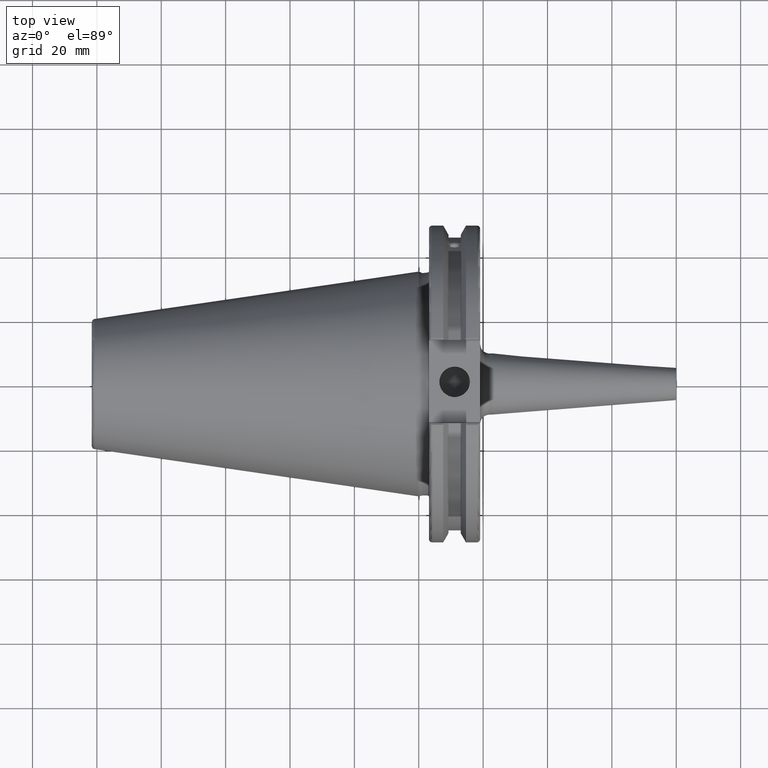
[diagram: clean part render]
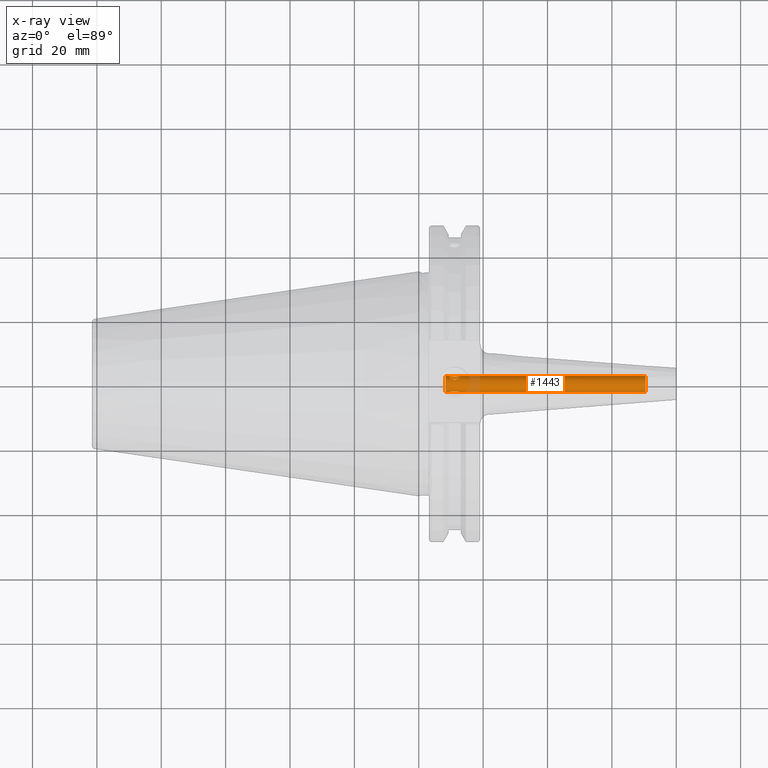
[diagram: x-ray — body ghosted, one internal face saturated and labeled with its STEP entity id]
A machine part, top view, then the same camera in x-ray: the body is ghosted and one INTERNAL B-rep face — a face not visible from any outside direction — is saturated and labeled: STEP entity #1443.
In plain terms, the highlighted cylindrical surface (bore or boss wall) has radius 2.5 mm, axis along (-1, 0, 0).
Its self-contained STEP definition (entity closure, byte-faithful):
#36=B_SPLINE_CURVE_WITH_KNOTS('',3,(#2188,#2189,#2190,#2191,#2192,#2193,
#2194,#2195,#2196,#2197,#2198,#2199,#2200,#2201,#2202,#2203,#2204,#2205,
#2206,#2207,#2208,#2209,#2210,#2211,#2212,#2213),.UNSPECIFIED.,.F.,.F.,
(4,2,2,2,2,2,2,2,2,2,2,2,4),(0.,0.0637230191753749,0.12744603835075,0.190562101038102,
0.253678163725455,0.316794226412808,0.379910289100161,0.443633308275535,
0.50735632745091,0.571079346626285,0.63480236580166,0.697918428489013,0.761034491176366),
 .UNSPECIFIED.);
#37=B_SPLINE_CURVE_WITH_KNOTS('',3,(#2214,#2215,#2216,#2217,#2218,#2219,
#2220,#2221,#2222,#2223),.UNSPECIFIED.,.F.,.F.,(4,2,2,2,4),(0.761034491176366,
0.824150553863718,0.887266616551071,0.950989635726446,1.01471265490182),
 .UNSPECIFIED.);
#38=B_SPLINE_CURVE_WITH_KNOTS('',3,(#2226,#2227,#2228,#2229,#2230,#2231,
#2232,#2233,#2234,#2235,#2236,#2237,#2238,#2239,#2240,#2241,#2242,#2243,
#2244,#2245,#2246,#2247,#2248,#2249,#2250,#2251),.UNSPECIFIED.,.F.,.F.,
(4,2,2,2,2,2,2,2,2,2,2,2,4),(0.,0.0637230191753749,0.12744603835075,0.190562101038102,
0.253678163725455,0.316794226412808,0.379910289100161,0.443633308275535,
0.50735632745091,0.571079346626285,0.63480236580166,0.697918428489013,0.761034491176365),
 .UNSPECIFIED.);
#39=B_SPLINE_CURVE_WITH_KNOTS('',3,(#2252,#2253,#2254,#2255,#2256,#2257,
#2258,#2259,#2260,#2261),.UNSPECIFIED.,.F.,.F.,(4,2,2,2,4),(0.761034491176365,
0.824150553863718,0.887266616551071,0.950989635726446,1.01471265490182),
 .UNSPECIFIED.);
#102=LINE('',#2185,#194);
#194=VECTOR('',#1775,2.5);
#274=CYLINDRICAL_SURFACE('',#1568,2.5);
#300=FACE_BOUND('',#447,.T.);
#301=FACE_BOUND('',#448,.T.);
#360=FACE_OUTER_BOUND('',#446,.T.);
#446=EDGE_LOOP('',(#1032,#1033,#1034,#1035));
#447=EDGE_LOOP('',(#1036,#1037));
#448=EDGE_LOOP('',(#1038,#1039));
#554=CIRCLE('',#1567,2.5);
#555=CIRCLE('',#1569,2.5);
#635=VERTEX_POINT('',#2179);
#636=VERTEX_POINT('',#2183);
#637=VERTEX_POINT('',#2186);
#638=VERTEX_POINT('',#2187);
#639=VERTEX_POINT('',#2224);
#640=VERTEX_POINT('',#2225);
#789=EDGE_CURVE('',#635,#635,#554,.T.);
#791=EDGE_CURVE('',#636,#636,#555,.T.);
#792=EDGE_CURVE('',#636,#635,#102,.T.);
#793=EDGE_CURVE('',#637,#638,#36,.T.);
#794=EDGE_CURVE('',#638,#637,#37,.T.);
#795=EDGE_CURVE('',#639,#640,#38,.T.);
#796=EDGE_CURVE('',#640,#639,#39,.T.);
#1032=ORIENTED_EDGE('',*,*,#791,.F.);
#1033=ORIENTED_EDGE('',*,*,#792,.T.);
#1034=ORIENTED_EDGE('',*,*,#789,.F.);
#1035=ORIENTED_EDGE('',*,*,#792,.F.);
#1036=ORIENTED_EDGE('',*,*,#793,.F.);
#1037=ORIENTED_EDGE('',*,*,#794,.F.);
#1038=ORIENTED_EDGE('',*,*,#795,.F.);
#1039=ORIENTED_EDGE('',*,*,#796,.F.);
#1443=ADVANCED_FACE('',(#360,#300,#301),#274,.F.);
#1567=AXIS2_PLACEMENT_3D('',#2180,#1768,#1769);
#1568=AXIS2_PLACEMENT_3D('',#2182,#1771,#1772);
#1569=AXIS2_PLACEMENT_3D('',#2184,#1773,#1774);
#1768=DIRECTION('center_axis',(-1.,0.,0.));
#1769=DIRECTION('ref_axis',(0.,0.,1.));
#1771=DIRECTION('center_axis',(-1.,0.,0.));
#1772=DIRECTION('ref_axis',(0.,0.,1.));
#1773=DIRECTION('center_axis',(1.,0.,0.));
#1774=DIRECTION('ref_axis',(0.,0.,1.));
#1775=DIRECTION('',(1.,0.,0.));
#2179=CARTESIAN_POINT('',(70.47,-3.06161699786839E-16,-2.50000000000001));
#2180=CARTESIAN_POINT('Origin',(70.47,0.,0.));
#2182=CARTESIAN_POINT('Origin',(-15.565,0.,0.));
#2183=CARTESIAN_POINT('',(8.35710010697738,3.06161699786838E-16,-2.5));
#2184=CARTESIAN_POINT('Origin',(8.35710010697738,0.,0.));
#2185=CARTESIAN_POINT('',(-15.565,-3.06161699786838E-16,-2.5));
#2186=CARTESIAN_POINT('',(11.1341,-2.34288424711468,0.87229204090253));
#2187=CARTESIAN_POINT('',(9.5131,-2.34923155196477,-0.855050358314171));
#2188=CARTESIAN_POINT('Ctrl Pts',(11.1341,-2.34288424711468,0.87229204090253));
#2189=CARTESIAN_POINT('Ctrl Pts',(11.3465100639179,-2.34288424711468,0.872292040902529));
#2190=CARTESIAN_POINT('Ctrl Pts',(11.5655947192169,-2.36477157326901,0.817726726080305));
#2191=CARTESIAN_POINT('Ctrl Pts',(11.9615007810139,-2.42452973471013,0.618446307168028));
#2192=CARTESIAN_POINT('Ctrl Pts',(12.1392192294107,-2.45964811024951,0.47469964766216));
#2193=CARTESIAN_POINT('Ctrl Pts',(12.4200769811454,-2.49974760742056,0.161222047659227));
#2194=CARTESIAN_POINT('Ctrl Pts',(12.5440461412593,-2.50824047763237,-0.0313298308171008));
#2195=CARTESIAN_POINT('Ctrl Pts',(12.7117096141242,-2.46943793626117,-0.44059983328368));
#2196=CARTESIAN_POINT('Ctrl Pts',(12.7551,-2.4211881013197,-0.657351363779618));
#2197=CARTESIAN_POINT('Ctrl Pts',(12.7551,-2.27727500260984,-1.05274935284873));
#2198=CARTESIAN_POINT('Ctrl Pts',(12.7117096141242,-2.17491132236477,-1.24980505439247));
#2199=CARTESIAN_POINT('Ctrl Pts',(12.5440461412593,-1.94156210695918,-1.58826585833504));
#2200=CARTESIAN_POINT('Ctrl Pts',(12.4200769811454,-1.81128622922084,-1.73031004311112));
#2201=CARTESIAN_POINT('Ctrl Pts',(12.1392192294107,-1.57906871504493,-1.94467235669943));
#2202=CARTESIAN_POINT('Ctrl Pts',(11.9615007810139,-1.45976790694742,-2.03221502976178));
#2203=CARTESIAN_POINT('Ctrl Pts',(11.5655947192169,-1.28589551531449,-2.14646088153996));
#2204=CARTESIAN_POINT('Ctrl Pts',(11.3465100639179,-1.23405494245285,-2.17419143568538));
#2205=CARTESIAN_POINT('Ctrl Pts',(10.9216899360821,-1.23405494245285,-2.17419143568538));
#2206=CARTESIAN_POINT('Ctrl Pts',(10.7026052807831,-1.28589551531449,-2.14646088153996));
#2207=CARTESIAN_POINT('Ctrl Pts',(10.3066992189861,-1.45976790694742,-2.03221502976179));
#2208=CARTESIAN_POINT('Ctrl Pts',(10.1289807705893,-1.57906871504493,-1.94467235669943));
#2209=CARTESIAN_POINT('Ctrl Pts',(9.84812301885457,-1.81128622922084,-1.73031004311112));
#2210=CARTESIAN_POINT('Ctrl Pts',(9.72415385874069,-1.94156210695918,-1.58826585833504));
#2211=CARTESIAN_POINT('Ctrl Pts',(9.55649038587582,-2.17491132236477,-1.24980505439247));
#2212=CARTESIAN_POINT('Ctrl Pts',(9.5131,-2.27727500260984,-1.05274935284873));
#2213=CARTESIAN_POINT('Ctrl Pts',(9.5131,-2.34923155196477,-0.855050358314171));
#2214=CARTESIAN_POINT('Ctrl Pts',(9.5131,-2.34923155196477,-0.855050358314171));
#2215=CARTESIAN_POINT('Ctrl Pts',(9.5131,-2.42118810131971,-0.657351363779617));
#2216=CARTESIAN_POINT('Ctrl Pts',(9.55649038587582,-2.46943793626118,-0.440599833283677));
#2217=CARTESIAN_POINT('Ctrl Pts',(9.72415385874069,-2.50824047763237,-0.0313298308170969));
#2218=CARTESIAN_POINT('Ctrl Pts',(9.84812301885457,-2.49974760742056,0.161222047659228));
#2219=CARTESIAN_POINT('Ctrl Pts',(10.1289807705893,-2.45964811024951,0.474699647662161));
#2220=CARTESIAN_POINT('Ctrl Pts',(10.3066992189861,-2.42452973471013,0.618446307168032));
#2221=CARTESIAN_POINT('Ctrl Pts',(10.7026052807831,-2.36477157326901,0.817726726080307));
#2222=CARTESIAN_POINT('Ctrl Pts',(10.9216899360821,-2.34288424711468,0.87229204090253));
#2223=CARTESIAN_POINT('Ctrl Pts',(11.1341,-2.34288424711468,0.87229204090253));
#2224=CARTESIAN_POINT('',(11.1341,2.34288424711468,-0.872292040902529));
#2225=CARTESIAN_POINT('',(9.5131,2.34923155196477,0.855050358314172));
#2226=CARTESIAN_POINT('Ctrl Pts',(11.1341,2.34288424711468,-0.872292040902529));
#2227=CARTESIAN_POINT('Ctrl Pts',(11.3465100639179,2.34288424711468,-0.872292040902529));
#2228=CARTESIAN_POINT('Ctrl Pts',(11.5655947192169,2.36477157326901,-0.817726726080304));
#2229=CARTESIAN_POINT('Ctrl Pts',(11.9615007810139,2.42452973471013,-0.618446307168026));
#2230=CARTESIAN_POINT('Ctrl Pts',(12.1392192294107,2.45964811024951,-0.474699647662159));
#2231=CARTESIAN_POINT('Ctrl Pts',(12.4200769811454,2.49974760742056,-0.161222047659226));
#2232=CARTESIAN_POINT('Ctrl Pts',(12.5440461412593,2.50824047763237,0.0313298308171025));
#2233=CARTESIAN_POINT('Ctrl Pts',(12.7117096141242,2.46943793626117,0.440599833283681));
#2234=CARTESIAN_POINT('Ctrl Pts',(12.7551,2.42118810131971,0.657351363779618));
#2235=CARTESIAN_POINT('Ctrl Pts',(12.7551,2.27727500260984,1.05274935284873));
#2236=CARTESIAN_POINT('Ctrl Pts',(12.7117096141242,2.17491132236477,1.24980505439247));
#2237=CARTESIAN_POINT('Ctrl Pts',(12.5440461412593,1.94156210695918,1.58826585833504));
#2238=CARTESIAN_POINT('Ctrl Pts',(12.4200769811454,1.81128622922084,1.73031004311112));
#2239=CARTESIAN_POINT('Ctrl Pts',(12.1392192294107,1.57906871504493,1.94467235669943));
#2240=CARTESIAN_POINT('Ctrl Pts',(11.9615007810139,1.45976790694742,2.03221502976178));
#2241=CARTESIAN_POINT('Ctrl Pts',(11.5655947192169,1.28589551531449,2.14646088153996));
#2242=CARTESIAN_POINT('Ctrl Pts',(11.3465100639179,1.23405494245286,2.17419143568539));
#2243=CARTESIAN_POINT('Ctrl Pts',(10.9216899360821,1.23405494245285,2.17419143568539));
#2244=CARTESIAN_POINT('Ctrl Pts',(10.7026052807831,1.28589551531449,2.14646088153996));
#2245=CARTESIAN_POINT('Ctrl Pts',(10.3066992189861,1.45976790694742,2.03221502976179));
#2246=CARTESIAN_POINT('Ctrl Pts',(10.1289807705893,1.57906871504493,1.94467235669943));
#2247=CARTESIAN_POINT('Ctrl Pts',(9.84812301885457,1.81128622922084,1.73031004311112));
#2248=CARTESIAN_POINT('Ctrl Pts',(9.72415385874069,1.94156210695918,1.58826585833504));
#2249=CARTESIAN_POINT('Ctrl Pts',(9.55649038587582,2.17491132236477,1.24980505439247));
#2250=CARTESIAN_POINT('Ctrl Pts',(9.5131,2.27727500260984,1.05274935284873));
#2251=CARTESIAN_POINT('Ctrl Pts',(9.5131,2.34923155196477,0.855050358314172));
#2252=CARTESIAN_POINT('Ctrl Pts',(9.5131,2.34923155196477,0.855050358314172));
#2253=CARTESIAN_POINT('Ctrl Pts',(9.5131,2.4211881013197,0.657351363779618));
#2254=CARTESIAN_POINT('Ctrl Pts',(9.55649038587582,2.46943793626118,0.440599833283678));
#2255=CARTESIAN_POINT('Ctrl Pts',(9.72415385874069,2.50824047763237,0.0313298308170982));
#2256=CARTESIAN_POINT('Ctrl Pts',(9.84812301885457,2.49974760742056,-0.161222047659228));
#2257=CARTESIAN_POINT('Ctrl Pts',(10.1289807705893,2.45964811024951,-0.47469964766216));
#2258=CARTESIAN_POINT('Ctrl Pts',(10.3066992189861,2.42452973471013,-0.618446307168031));
#2259=CARTESIAN_POINT('Ctrl Pts',(10.7026052807831,2.36477157326901,-0.817726726080306));
#2260=CARTESIAN_POINT('Ctrl Pts',(10.9216899360821,2.34288424711468,-0.87229204090253));
#2261=CARTESIAN_POINT('Ctrl Pts',(11.1341,2.34288424711468,-0.872292040902529));